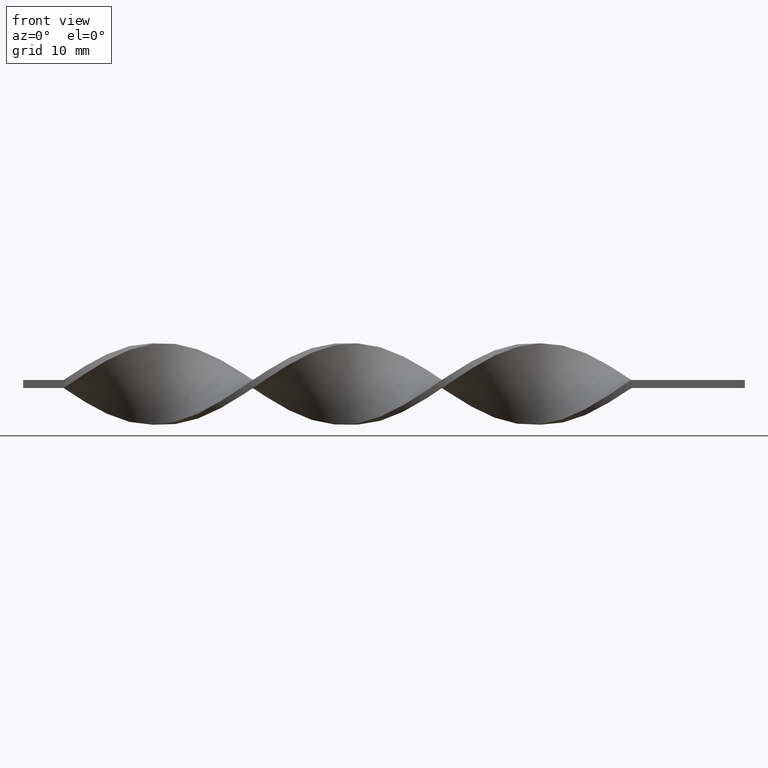
[diagram: clean part render]
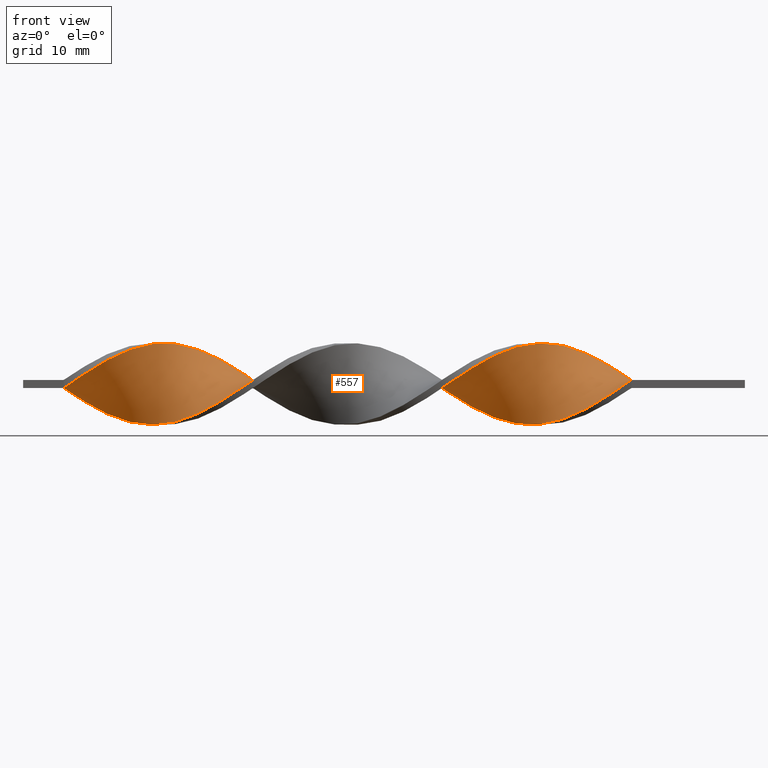
[diagram: same view with one face highlighted and labeled with its STEP entity id]
A machine part, front view. The second image highlights one B-rep face of the part: STEP entity #557.
In plain terms, the highlighted face is a freeform B-spline surface patch.
Its self-contained STEP definition (entity closure, byte-faithful):
#3 = CARTESIAN_POINT ( 'NONE',  ( -23.87179487179487580, -1.694403338218445576, -4.769828676396802081 ) ) ;
#6 = CARTESIAN_POINT ( 'NONE',  ( -71.43589743589744501, 0.1063289642275867114, 5.023812710617931998 ) ) ;
#9 = CARTESIAN_POINT ( 'NONE',  ( -27.46153846153846345, 0.7163302668880149326, -5.010902036907446622 ) ) ;
#11 = CARTESIAN_POINT ( 'NONE',  ( -84.00000000000000000, 4.999999999999995559, -0.5000000000000006661 ) ) ;
#13 = VERTEX_POINT ( 'NONE', #1213 ) ;
#14 = CARTESIAN_POINT ( 'NONE',  ( -69.64102564102564941, 1.305516313869969247, 4.852383656948342505 ) ) ;
#20 = CARTESIAN_POINT ( 'NONE',  ( -84.00000000000000000, 1.666666666666663188, -0.5000000000000002220 ) ) ;
#24 = CARTESIAN_POINT ( 'NONE',  ( -58.87179487179486870, 4.974366919274036292, -0.7111074127247674070 ) ) ;
#31 = CARTESIAN_POINT ( 'NONE',  ( -75.92307692307693401, -2.786661774892330357, 4.225728863414810021 ) ) ;
#41 = CARTESIAN_POINT ( 'NONE',  ( -22.97435897435897090, -2.240532556555387966, -4.497778769905804275 ) ) ;
#56 = CARTESIAN_POINT ( 'NONE',  ( -22.97435897435897445, 1.305516313869969247, 4.852383656948342505 ) ) ;
#59 = CARTESIAN_POINT ( 'NONE',  ( -82.20512820512820440, 4.735051254986476721, -1.682049230150816088 ) ) ;
#69 =( BOUNDED_CURVE ( )  B_SPLINE_CURVE ( 2, ( #1174, #1550, #653, #1293, #1300, #903, #782, #1420, #443, #1528, #56, #1394, #1155, #309, #278, #537, #1163, #1523, #299, #170, #1024, #1399, #189, #1281, #1414, #796, #911, #659, #1535, #1407, #291, #1046, #1286, #788, #427, #916, #1181, #560, #435, #803, #682, #1188, #335, #1438, #1570, #1102, #102, #1317, #1595, #597, #1195, #485, #823, #364, #1079, #114, #1560, #812, #1214, #1069, #587, #227, #207, #973, #1307, #1336, #1089, #123, #1224, #464, #1470, #853, #1346, #237, #1110, #700, #1583, #453, #605 ),
 .UNSPECIFIED., .F., .T. ) 
 B_SPLINE_CURVE_WITH_KNOTS ( ( 3, 2, 2, 2, 2, 2, 2, 2, 2, 2, 2, 2, 2, 2, 2, 2, 2, 2, 2, 2, 2, 2, 2, 2, 2, 2, 2, 2, 2, 2, 2, 2, 2, 2, 2, 2, 2, 2, 2, 3 ),
 ( 0.000000000000000000, 0.01923076923076923184, 0.03846153846153846367, 0.05769230769230768857, 0.07692307692307692735, 0.09615384615384615918, 0.1153846153846153771, 0.1346153846153846090, 0.1538461538461538547, 0.1730769230769230449, 0.1923076923076923184, 0.2115384615384615363, 0.2307692307692307543, 0.2500000000000000000, 0.2692307692307692180, 0.2884615384615384359, 0.3076923076923077094, 0.3269230769230769273, 0.3461538461538460898, 0.3653846153846153633, 0.3846153846153846367, 0.4038461538461539102, 0.4230769230769230727, 0.4423076923076922906, 0.4615384615384615086, 0.4807692307692307820, 0.5000000000000000000, 0.5192307692307692735, 0.5384615384615384359, 0.5576923076923077094, 0.5769230769230768718, 0.5961538461538461453, 0.6153846153846154188, 0.6346153846153845812, 0.6538461538461538547, 0.6730769230769230171, 0.6923076923076921796, 0.7115384615384615641, 0.7307692307692307265, 0.7500000000000000000 ),
 .UNSPECIFIED. ) 
 CURVE ( )  GEOMETRIC_REPRESENTATION_ITEM ( )  RATIONAL_B_SPLINE_CURVE ( ( 1.000000000000000000, 0.9927088740980539727, 1.000000000000000000, 0.9927088740980539727, 1.000000000000000000, 0.9927088740980539727, 1.000000000000000000, 0.9927088740980539727, 1.000000000000000000, 0.9927088740980539727, 1.000000000000000000, 0.9927088740980539727, 1.000000000000000000, 0.9927088740980539727, 1.000000000000000000, 0.9927088740980539727, 1.000000000000000000, 0.9927088740980539727, 1.000000000000000000, 0.9927088740980539727, 1.000000000000000000, 0.9927088740980539727, 1.000000000000000000, 0.9927088740980539727, 1.000000000000000000, 0.9927088740980539727, 1.000000000000000000, 0.9927088740980539727, 1.000000000000000000, 0.9927088740980539727, 1.000000000000000000, 0.9927088740980539727, 1.000000000000000000, 0.9927088740980539727, 1.000000000000000000, 0.9927088740980539727, 1.000000000000000000, 0.9927088740980539727, 1.000000000000000000, 0.9927088740980539727, 1.000000000000000000, 0.9927088740980539727, 1.000000000000000000, 0.9927088740980539727, 1.000000000000000000, 0.9927088740980539727, 1.000000000000000000, 0.9927088740980539727, 1.000000000000000000, 0.9927088740980539727, 1.000000000000000000, 0.9927088740980539727, 1.000000000000000000, 0.9927088740980539727, 1.000000000000000000, 0.9927088740980539727, 1.000000000000000000, 0.9927088740980539727, 1.000000000000000000, 0.9927088740980539727, 1.000000000000000000, 0.9927088740980539727, 1.000000000000000000, 0.9927088740980539727, 1.000000000000000000, 0.9927088740980539727, 1.000000000000000000, 0.9927088740980539727, 1.000000000000000000, 0.9927088740980539727, 1.000000000000000000, 0.9927088740980539727, 1.000000000000000000, 0.9927088740980539727, 1.000000000000000000, 0.9927088740980539727, 1.000000000000000000, 0.9927088740980539727, 1.000000000000000000 ) ) 
 REPRESENTATION_ITEM ( '' )  );
#79 = EDGE_LOOP ( 'NONE', ( #223, #132, #1331, #157 ) ) ;
#83 = CARTESIAN_POINT ( 'NONE',  ( -59.76923076923077360, -4.939289008388870528, 1.107109916111305159 ) ) ;
#96 = CARTESIAN_POINT ( 'NONE',  ( -18.48717948717948900, 3.859023582904236083, 3.275699201900568180 ) ) ;
#102 = CARTESIAN_POINT ( 'NONE',  ( -55.28205128205128460, 4.074115069975898784, -2.941357917118427423 ) ) ;
#105 = CARTESIAN_POINT ( 'NONE',  ( -70.53846153846153300, -1.694403338218445576, -4.769828676396802081 ) ) ;
#111 = CARTESIAN_POINT ( 'NONE',  ( -13.99999999999999645, -5.000000000000000888, 0.5000000000000000000 ) ) ;
#114 = CARTESIAN_POINT ( 'NONE',  ( -63.35897435897436480, 4.530813501584090908, 2.256988544190327239 ) ) ;
#116 = CARTESIAN_POINT ( 'NONE',  ( -81.30769230769233502, 4.530813501584088243, -2.256988544190327239 ) ) ;
#120 = CARTESIAN_POINT ( 'NONE',  ( -48.10256410256410220, 1.099037838325642280, 4.903276030362606619 ) ) ;
#123 = CARTESIAN_POINT ( 'NONE',  ( -74.12820512820510999, -1.694403338218445132, 4.769828676396803857 ) ) ;
#125 = CARTESIAN_POINT ( 'NONE',  ( -76.82051282051281760, 2.428831800708946886, -4.398951702833858945 ) ) ;
#129 = CARTESIAN_POINT ( 'NONE',  ( -40.92307692307691980, 4.659641714287929837, 1.880887847392236800 ) ) ;
#131 = CARTESIAN_POINT ( 'NONE',  ( -13.99999999999999822, 4.999999999999997335, 0.5000000000000000000 ) ) ;
#132 = ORIENTED_EDGE ( 'NONE', *, *, #672, .T. ) ;
#133 = CARTESIAN_POINT ( 'NONE',  ( -38.23076923076922640, -4.939289008388872304, -1.107109916111302050 ) ) ;
#137 = CARTESIAN_POINT ( 'NONE',  ( -38.23076923076922640, 5.060710991611125920, 0.1071099161113012732 ) ) ;
#140 = CARTESIAN_POINT ( 'NONE',  ( -56.17948717948717530, 4.431260581638917451, -2.446670785446253937 ) ) ;
#141 = CARTESIAN_POINT ( 'NONE',  ( -31.05128205128205465, 2.962961240565973320, -4.104038128678484831 ) ) ;
#145 = CARTESIAN_POINT ( 'NONE',  ( -35.53846153846154010, -4.974366919274040733, 0.7111074127247645205 ) ) ;
#151 = CARTESIAN_POINT ( 'NONE',  ( -72.33333333333332860, -0.5036723384328436470, 5.036723384328413822 ) ) ;
#157 = ORIENTED_EDGE ( 'NONE', *, *, #1511, .F. ) ;
#158 = CARTESIAN_POINT ( 'NONE',  ( -42.71794871794872250, -3.410992411735112029, -3.689868665289525396 ) ) ;
#166 = CARTESIAN_POINT ( 'NONE',  ( -64.25641025641024839, -4.659641714287935166, -1.880887847392236800 ) ) ;
#170 = CARTESIAN_POINT ( 'NONE',  ( -31.05128205128205821, -3.716969558312888111, 3.436045048790599576 ) ) ;
#178 = CARTESIAN_POINT ( 'NONE',  ( -22.07692307692308376, -2.786661774892329912, -4.225728863414808245 ) ) ;
#182 = CARTESIAN_POINT ( 'NONE',  ( -82.20512820512820440, -4.974366919274040733, 0.7111074127247645205 ) ) ;
#183 = CARTESIAN_POINT ( 'NONE',  ( -23.87179487179487580, -1.694403338218445576, -4.769828676396802081 ) ) ;
#189 = CARTESIAN_POINT ( 'NONE',  ( -33.74358974358974450, -4.659641714287936054, 1.880887847392238577 ) ) ;
#207 = CARTESIAN_POINT ( 'NONE',  ( -69.64102564102564941, 1.305516313869969247, 4.852383656948342505 ) ) ;
#208 = CARTESIAN_POINT ( 'NONE',  ( -17.58974358974358765, 4.194918542244162829, 2.766343873045447488 ) ) ;
#219 = CARTESIAN_POINT ( 'NONE',  ( -57.07692307692307310, -4.194918542244165494, 2.766343873045449708 ) ) ;
#223 = ORIENTED_EDGE ( 'NONE', *, *, #964, .F. ) ;
#227 = CARTESIAN_POINT ( 'NONE',  ( -68.74358974358973740, 1.894702360851921119, 4.693865276989235724 ) ) ;
#230 = CARTESIAN_POINT ( 'NONE',  ( -22.07692307692308376, 1.894702360851920897, 4.693865276989235724 ) ) ;
#237 = CARTESIAN_POINT ( 'NONE',  ( -79.51282051282051100, -4.431260581638921892, 2.446670785446253049 ) ) ;
#239 = CARTESIAN_POINT ( 'NONE',  ( -75.92307692307693401, 1.894702360851919565, -4.693865276989233948 ) ) ;
#243 = CARTESIAN_POINT ( 'NONE',  ( -72.33333333333332860, -0.5036723384328442021, -5.036723384328412934 ) ) ;
#248 = CARTESIAN_POINT ( 'NONE',  ( -41.82051282051282470, -3.859023582904240968, -3.275699201900568180 ) ) ;
#251 = CARTESIAN_POINT ( 'NONE',  ( -22.07692307692308020, -2.786661774892330357, -4.225728863414808245 ) ) ;
#255 = CARTESIAN_POINT ( 'NONE',  ( -57.97435897435897090, 4.888022846936944887, -1.315104909338225214 ) ) ;
#258 = CARTESIAN_POINT ( 'NONE',  ( -47.20512820512820440, 1.694403338218440691, 4.769828676396802969 ) ) ;
#261 = CARTESIAN_POINT ( 'NONE',  ( -34.64102564102564230, -4.888022846936950216, 1.315104909338224548 ) ) ;
#265 = CARTESIAN_POINT ( 'NONE',  ( -44.51282051282051100, -2.428831800708954436, -4.398951702833859834 ) ) ;
#272 = CARTESIAN_POINT ( 'NONE',  ( -53.48717948717948900, 3.251815666602603905, -3.830886956102705465 ) ) ;
#278 = CARTESIAN_POINT ( 'NONE',  ( -26.56410256410256210, -1.099037838325643834, 4.903276030362608395 ) ) ;
#280 = CARTESIAN_POINT ( 'NONE',  ( -57.07692307692307310, -4.194918542244165494, 2.766343873045449708 ) ) ;
#291 = CARTESIAN_POINT ( 'NONE',  ( -40.92307692307691980, -4.194918542244167270, -2.766343873045447044 ) ) ;
#293 = CARTESIAN_POINT ( 'NONE',  ( -20.28205128205128460, -3.716969558312888555, -3.436045048790597356 ) ) ;
#299 = CARTESIAN_POINT ( 'NONE',  ( -30.15384615384615685, -3.251815666602609234, 3.830886956102704133 ) ) ;
#302 = CARTESIAN_POINT ( 'NONE',  ( -32.84615384615384670, 3.859023582904233418, -3.275699201900567736 ) ) ;
#309 = CARTESIAN_POINT ( 'NONE',  ( -25.66666666666667140, -0.5036723384328436470, 5.036723384328414710 ) ) ;
#327 = CARTESIAN_POINT ( 'NONE',  ( -74.12820512820510999, 0.7163302668880149326, -5.010902036907446622 ) ) ;
#335 = CARTESIAN_POINT ( 'NONE',  ( -51.69230769230769340, 2.240532556555383081, -4.497778769905806051 ) ) ;
#337 = CARTESIAN_POINT ( 'NONE',  ( -77.71794871794872961, 2.962961240565973320, -4.104038128678483943 ) ) ;
#347 = CARTESIAN_POINT ( 'NONE',  ( -69.64102564102564941, -2.240532556555387966, -4.497778769905804275 ) ) ;
#357 = CARTESIAN_POINT ( 'NONE',  ( -84.00000000000000000, 4.999999999999995559, -0.5000000000000006661 ) ) ;
#364 = CARTESIAN_POINT ( 'NONE',  ( -61.56410256410256920, 4.939289008388866975, 1.107109916111302939 ) ) ;
#367 = CARTESIAN_POINT ( 'NONE',  ( -55.28205128205128460, -3.410992411735107144, 3.689868665289526728 ) ) ;
#372 = CARTESIAN_POINT ( 'NONE',  ( -69.64102564102564941, -2.240532556555387966, -4.497778769905804275 ) ) ;
#373 = DIRECTION ( 'NONE',  ( 1.734723475976807341E-16, -1.000000000000000000, 0.000000000000000000 ) ) ;
#376 = CARTESIAN_POINT ( 'NONE',  ( -64.25641025641024839, -4.659641714287935166, -1.880887847392236800 ) ) ;
#380 = CARTESIAN_POINT ( 'NONE',  ( -52.58974358974359120, -1.894702360851922451, 4.693865276989233948 ) ) ;
#383 = CARTESIAN_POINT ( 'NONE',  ( -23.87179487179487936, 0.7163302668880159318, 5.010902036907450174 ) ) ;
#385 = CARTESIAN_POINT ( 'NONE',  ( -53.48717948717948900, -2.428831800708951327, 4.398951702833859834 ) ) ;
#391 = CARTESIAN_POINT ( 'NONE',  ( -76.82051282051281760, -3.251815666602609234, 3.830886956102704133 ) ) ;
#395 = CARTESIAN_POINT ( 'NONE',  ( -61.56410256410256920, 4.939289008388866975, 1.107109916111302939 ) ) ;
#401 = CARTESIAN_POINT ( 'NONE',  ( -27.46153846153846345, -1.694403338218445132, 4.769828676396804745 ) ) ;
#406 = CARTESIAN_POINT ( 'NONE',  ( -67.84615384615385381, 2.428831800708949107, 4.398951702833859834 ) ) ;
#408 = CARTESIAN_POINT ( 'NONE',  ( -45.41025641025640880, 2.786661774892327248, 4.225728863414806469 ) ) ;
#414 = CARTESIAN_POINT ( 'NONE',  ( -22.97435897435897090, -2.240532556555387966, -4.497778769905804275 ) ) ;
#416 = CARTESIAN_POINT ( 'NONE',  ( -35.53846153846153300, 4.735051254986476721, -1.682049230150816088 ) ) ;
#424 = CARTESIAN_POINT ( 'NONE',  ( -83.10256410256410220, 4.939289008388865199, -1.107109916111304937 ) ) ;
#427 = CARTESIAN_POINT ( 'NONE',  ( -44.51282051282051100, -2.428831800708954436, -4.398951702833859834 ) ) ;
#430 = CARTESIAN_POINT ( 'NONE',  ( -24.76923076923076650, -1.099037838325645167, -4.903276030362606619 ) ) ;
#435 = CARTESIAN_POINT ( 'NONE',  ( -48.10256410256410220, -0.1063289642275932062, -5.023812710617931998 ) ) ;
#443 = CARTESIAN_POINT ( 'NONE',  ( -21.17948717948717885, 2.428831800708949107, 4.398951702833859834 ) ) ;
#453 = CARTESIAN_POINT ( 'NONE',  ( -83.10256410256410220, -5.060710991611133025, 0.1071099161113049647 ) ) ;
#455 = CARTESIAN_POINT ( 'NONE',  ( -78.61538461538461320, 3.410992411735102703, -3.689868665289526284 ) ) ;
#464 = CARTESIAN_POINT ( 'NONE',  ( -75.92307692307691980, -2.786661774892330801, 4.225728863414810021 ) ) ;
#466 = CARTESIAN_POINT ( 'NONE',  ( -37.33333333333332860, 4.999999999999995559, -0.5000000000000006661 ) ) ;
#471 = VERTEX_POINT ( 'NONE', #1430 ) ;
#478 = CARTESIAN_POINT ( 'NONE',  ( -73.23076923076924061, 0.1063289642275847546, -5.023812710617930222 ) ) ;
#485 = CARTESIAN_POINT ( 'NONE',  ( -59.76923076923076650, 5.060710991611127696, -0.1071099161113055059 ) ) ;
#487 = CARTESIAN_POINT ( 'NONE',  ( -67.84615384615385381, -3.251815666602609234, -3.830886956102702356 ) ) ;
#492 = CARTESIAN_POINT ( 'NONE',  ( -66.94871794871795601, -3.716969558312888555, -3.436045048790597356 ) ) ;
#494 = CARTESIAN_POINT ( 'NONE',  ( -14.00000000000000000, 4.999999999999997335, 0.5000000000000000000 ) ) ;
#498 = CARTESIAN_POINT ( 'NONE',  ( -46.30769230769230660, 2.240532556555383970, 4.497778769905804275 ) ) ;
#502 = CARTESIAN_POINT ( 'NONE',  ( -31.94871794871794535, -4.074115069975905001, 2.941357917118426535 ) ) ;
#505 = CARTESIAN_POINT ( 'NONE',  ( -61.56410256410256920, -5.060710991611131249, -0.1071099161113024806 ) ) ;
#508 = CARTESIAN_POINT ( 'NONE',  ( -73.23076923076924061, -1.099037838325643834, 4.903276030362608395 ) ) ;
#510 = CARTESIAN_POINT ( 'NONE',  ( -31.94871794871794535, 3.410992411735102703, -3.689868665289526284 ) ) ;
#513 = CARTESIAN_POINT ( 'NONE',  ( -39.12820512820512420, -4.735051254986484714, -1.682049230150813202 ) ) ;
#519 = CARTESIAN_POINT ( 'NONE',  ( -84.00000000000000000, -5.000000000000002665, -0.4999999999999993339 ) ) ;
#523 = CARTESIAN_POINT ( 'NONE',  ( -75.02564102564102200, -2.240532556555387078, 4.497778769905806939 ) ) ;
#531 = CARTESIAN_POINT ( 'NONE',  ( -77.71794871794872961, -3.716969558312888111, 3.436045048790599576 ) ) ;
#537 = CARTESIAN_POINT ( 'NONE',  ( -27.46153846153846345, -1.694403338218445132, 4.769828676396803857 ) ) ;
#541 = CARTESIAN_POINT ( 'NONE',  ( -36.43589743589743790, 4.939289008388865199, -1.107109916111304937 ) ) ;
#548 = CARTESIAN_POINT ( 'NONE',  ( -13.99999999999999822, 4.999999999999997335, 0.5000000000000000000 ) ) ;
#552 = CARTESIAN_POINT ( 'NONE',  ( -31.05128205128205821, 2.962961240565973320, -4.104038128678483943 ) ) ;
#553 = CARTESIAN_POINT ( 'NONE',  ( -75.92307692307691980, 1.894702360851919787, -4.693865276989233948 ) ) ;
#557 = ADVANCED_FACE ( 'NONE', ( #1524 ), #1513, .T. ) ;
#560 = CARTESIAN_POINT ( 'NONE',  ( -47.20512820512820440, -0.7163302668880202617, -5.010902036907448398 ) ) ;
#566 = CARTESIAN_POINT ( 'NONE',  ( -84.00000000000000000, -5.000000000000002665, -0.4999999999999993339 ) ) ;
#579 = CARTESIAN_POINT ( 'NONE',  ( -74.12820512820512420, 0.7163302668880148216, -5.010902036907447510 ) ) ;
#580 = CARTESIAN_POINT ( 'NONE',  ( -77.71794871794874382, 2.962961240565973320, -4.104038128678484831 ) ) ;
#587 = CARTESIAN_POINT ( 'NONE',  ( -67.84615384615385381, 2.428831800708949107, 4.398951702833859834 ) ) ;
#590 = CARTESIAN_POINT ( 'NONE',  ( -20.28205128205128460, 2.962961240565976428, 4.104038128678484831 ) ) ;
#597 = CARTESIAN_POINT ( 'NONE',  ( -57.97435897435897090, 4.888022846936944887, -1.315104909338224992 ) ) ;
#598 = CARTESIAN_POINT ( 'NONE',  ( -56.17948717948717530, -3.859023582904238303, 3.275699201900568180 ) ) ;
#605 = CARTESIAN_POINT ( 'NONE',  ( -84.00000000000000000, -5.000000000000002665, -0.4999999999999993339 ) ) ;
#607 = CARTESIAN_POINT ( 'NONE',  ( -82.20512820512820440, 4.735051254986476721, -1.682049230150816088 ) ) ;
#610 = CARTESIAN_POINT ( 'NONE',  ( -39.12820512820512420, 4.974366919274035403, 0.7111074127247607457 ) ) ;
#614 = CARTESIAN_POINT ( 'NONE',  ( -47.20512820512820440, 1.694403338218440691, 4.769828676396802969 ) ) ;
#618 = CARTESIAN_POINT ( 'NONE',  ( -32.84615384615384670, 3.859023582904232974, -3.275699201900567292 ) ) ;
#621 = CARTESIAN_POINT ( 'NONE',  ( -43.61538461538462030, -2.962961240565982202, -4.104038128678483943 ) ) ;
#626 =( BOUNDED_CURVE ( )  B_SPLINE_CURVE ( 2, ( #111, #1469, #742, #733, #1238, #1525, #1358, #907, #991, #251, #41, #3, #1252, #996, #1131, #9, #1159, #725, #1483, #141, #510, #618, #1402, #1364, #416, #541, #1124, #137, #610, #633, #129, #1230, #1001, #1497, #1611, #408, #498, #258, #120, #1109, #899, #1028, #1397, #380, #385, #751, #1116, #1278, #280, #863, #777, #627, #1245, #505, #1605, #1489, #166, #656, #871, #492, #981, #1476, #372, #858, #1352, #243, #792, #327, #1073, #553, #1183, #580, #661, #1431, #1565, #1036, #59, #424, #805 ),
 .UNSPECIFIED., .F., .T. ) 
 B_SPLINE_CURVE_WITH_KNOTS ( ( 3, 2, 2, 2, 2, 2, 2, 2, 2, 2, 2, 2, 2, 2, 2, 2, 2, 2, 2, 2, 2, 2, 2, 2, 2, 2, 2, 2, 2, 2, 2, 2, 2, 2, 2, 2, 2, 2, 2, 3 ),
 ( 0.000000000000000000, 0.01923076923076923184, 0.03846153846153846367, 0.05769230769230768857, 0.07692307692307692735, 0.09615384615384615918, 0.1153846153846153771, 0.1346153846153846090, 0.1538461538461538547, 0.1730769230769230449, 0.1923076923076923184, 0.2115384615384615363, 0.2307692307692307543, 0.2500000000000000000, 0.2692307692307692180, 0.2884615384615384359, 0.3076923076923077094, 0.3269230769230769273, 0.3461538461538460898, 0.3653846153846153633, 0.3846153846153846367, 0.4038461538461539102, 0.4230769230769230727, 0.4423076923076922906, 0.4615384615384615086, 0.4807692307692307820, 0.5000000000000000000, 0.5192307692307692735, 0.5384615384615384359, 0.5576923076923077094, 0.5769230769230768718, 0.5961538461538461453, 0.6153846153846154188, 0.6346153846153845812, 0.6538461538461538547, 0.6730769230769230171, 0.6923076923076921796, 0.7115384615384615641, 0.7307692307692307265, 0.7500000000000000000 ),
 .UNSPECIFIED. ) 
 CURVE ( )  GEOMETRIC_REPRESENTATION_ITEM ( )  RATIONAL_B_SPLINE_CURVE ( ( 1.000000000000000000, 0.9927088740980539727, 1.000000000000000000, 0.9927088740980539727, 1.000000000000000000, 0.9927088740980539727, 1.000000000000000000, 0.9927088740980539727, 1.000000000000000000, 0.9927088740980539727, 1.000000000000000000, 0.9927088740980539727, 1.000000000000000000, 0.9927088740980539727, 1.000000000000000000, 0.9927088740980539727, 1.000000000000000000, 0.9927088740980539727, 1.000000000000000000, 0.9927088740980539727, 1.000000000000000000, 0.9927088740980539727, 1.000000000000000000, 0.9927088740980539727, 1.000000000000000000, 0.9927088740980539727, 1.000000000000000000, 0.9927088740980539727, 1.000000000000000000, 0.9927088740980539727, 1.000000000000000000, 0.9927088740980539727, 1.000000000000000000, 0.9927088740980539727, 1.000000000000000000, 0.9927088740980539727, 1.000000000000000000, 0.9927088740980539727, 1.000000000000000000, 0.9927088740980539727, 1.000000000000000000, 0.9927088740980539727, 1.000000000000000000, 0.9927088740980539727, 1.000000000000000000, 0.9927088740980539727, 1.000000000000000000, 0.9927088740980539727, 1.000000000000000000, 0.9927088740980539727, 1.000000000000000000, 0.9927088740980539727, 1.000000000000000000, 0.9927088740980539727, 1.000000000000000000, 0.9927088740980539727, 1.000000000000000000, 0.9927088740980539727, 1.000000000000000000, 0.9927088740980539727, 1.000000000000000000, 0.9927088740980539727, 1.000000000000000000, 0.9927088740980539727, 1.000000000000000000, 0.9927088740980539727, 1.000000000000000000, 0.9927088740980539727, 1.000000000000000000, 0.9927088740980539727, 1.000000000000000000, 0.9927088740980539727, 1.000000000000000000, 0.9927088740980539727, 1.000000000000000000, 0.9927088740980539727, 1.000000000000000000, 0.9927088740980539727, 1.000000000000000000 ) ) 
 REPRESENTATION_ITEM ( '' )  );
#627 = CARTESIAN_POINT ( 'NONE',  ( -59.76923076923076650, -4.939289008388870528, 1.107109916111305381 ) ) ;
#630 = CARTESIAN_POINT ( 'NONE',  ( -29.25641025641026260, -2.786661774892330357, 4.225728863414810021 ) ) ;
#633 = CARTESIAN_POINT ( 'NONE',  ( -40.02564102564102200, 4.888022846936944887, 1.315104909338220329 ) ) ;
#635 = CARTESIAN_POINT ( 'NONE',  ( -60.66666666666666430, 4.999999999999997335, 0.5000000000000000000 ) ) ;
#641 = CARTESIAN_POINT ( 'NONE',  ( -45.41025641025640880, -1.894702360851929113, -4.693865276989233948 ) ) ;
#648 = CARTESIAN_POINT ( 'NONE',  ( -49.89743589743589069, 1.099037838325636285, -4.903276030362610172 ) ) ;
#653 = CARTESIAN_POINT ( 'NONE',  ( -15.79487179487179560, 4.735051254986478497, 1.682049230150814756 ) ) ;
#656 = CARTESIAN_POINT ( 'NONE',  ( -65.15384615384614619, -4.431260581638921003, -2.446670785446251273 ) ) ;
#659 = CARTESIAN_POINT ( 'NONE',  ( -38.23076923076922640, -4.939289008388872304, -1.107109916111301828 ) ) ;
#661 = CARTESIAN_POINT ( 'NONE',  ( -78.61538461538461320, 3.410992411735102703, -3.689868665289526284 ) ) ;
#669 = CARTESIAN_POINT ( 'NONE',  ( -28.35897435897435770, 1.305516313869967027, -4.852383656948339841 ) ) ;
#672 = EDGE_CURVE ( 'NONE', #1515, #988, #69, .T. ) ;
#677 = CARTESIAN_POINT ( 'NONE',  ( -29.25641025641025905, 1.894702360851919565, -4.693865276989233948 ) ) ;
#682 = CARTESIAN_POINT ( 'NONE',  ( -49.89743589743589069, 1.099037838325636285, -4.903276030362610172 ) ) ;
#695 = CARTESIAN_POINT ( 'NONE',  ( -54.38461538461538680, -2.962961240565975984, 4.104038128678485720 ) ) ;
#700 = CARTESIAN_POINT ( 'NONE',  ( -81.30769230769232081, -4.888022846936950216, 1.315104909338224326 ) ) ;
#702 = CARTESIAN_POINT ( 'NONE',  ( -36.43589743589743790, 4.939289008388865199, -1.107109916111304715 ) ) ;
#710 = CARTESIAN_POINT ( 'NONE',  ( -60.66666666666666430, -5.000000000000000888, 0.5000000000000000000 ) ) ;
#720 = CARTESIAN_POINT ( 'NONE',  ( -49.00000000000000711, 0.5036723384328398723, 5.036723384328412045 ) ) ;
#725 = CARTESIAN_POINT ( 'NONE',  ( -29.25641025641025905, 1.894702360851919787, -4.693865276989233948 ) ) ;
#731 = CARTESIAN_POINT ( 'NONE',  ( -42.71794871794872250, 4.074115069975900560, 2.941357917118423426 ) ) ;
#733 = CARTESIAN_POINT ( 'NONE',  ( -16.69230769230769340, -4.888022846936949328, -1.315104909338222106 ) ) ;
#738 = CARTESIAN_POINT ( 'NONE',  ( -50.79487179487178850, 1.694403338218439137, -4.769828676396805633 ) ) ;
#742 = CARTESIAN_POINT ( 'NONE',  ( -15.79487179487179205, -4.974366919274039844, -0.7111074127247621890 ) ) ;
#745 = CARTESIAN_POINT ( 'NONE',  ( -25.66666666666667140, -0.5036723384328436470, 5.036723384328413822 ) ) ;
#751 = CARTESIAN_POINT ( 'NONE',  ( -54.38461538461538680, -2.962961240565975984, 4.104038128678486608 ) ) ;
#754 = CARTESIAN_POINT ( 'NONE',  ( -78.61538461538461320, -4.074115069975905001, 2.941357917118426535 ) ) ;
#757 = CARTESIAN_POINT ( 'NONE',  ( -84.00000000000000000, -1.666666666666670071, -0.4999999999999997780 ) ) ;
#759 = CARTESIAN_POINT ( 'NONE',  ( -33.74358974358974450, -4.659641714287936054, 1.880887847392238577 ) ) ;
#766 = CARTESIAN_POINT ( 'NONE',  ( -54.38461538461538680, 3.716969558312881450, -3.436045048790601797 ) ) ;
#773 = CARTESIAN_POINT ( 'NONE',  ( -80.41025641025640880, -4.659641714287936054, 1.880887847392238577 ) ) ;
#777 = CARTESIAN_POINT ( 'NONE',  ( -58.87179487179486870, -4.735051254986480274, 1.682049230150818753 ) ) ;
#782 = CARTESIAN_POINT ( 'NONE',  ( -19.38461538461538680, 3.410992411735105811, 3.689868665289526284 ) ) ;
#788 = CARTESIAN_POINT ( 'NONE',  ( -43.61538461538462030, -2.962961240565982646, -4.104038128678484831 ) ) ;
#792 = CARTESIAN_POINT ( 'NONE',  ( -73.23076923076924061, 0.1063289642275847546, -5.023812710617930222 ) ) ;
#796 = CARTESIAN_POINT ( 'NONE',  ( -36.43589743589743790, -5.060710991611133025, 0.1071099161113049647 ) ) ;
#798 = CARTESIAN_POINT ( 'NONE',  ( -33.74358974358974450, 4.194918542244161053, -2.766343873045447488 ) ) ;
#803 = CARTESIAN_POINT ( 'NONE',  ( -49.00000000000000000, 0.5036723384328380959, -5.036723384328414710 ) ) ;
#805 = CARTESIAN_POINT ( 'NONE',  ( -84.00000000000000000, 4.999999999999995559, -0.5000000000000006661 ) ) ;
#812 = CARTESIAN_POINT ( 'NONE',  ( -65.15384615384616041, 3.859023582904235639, 3.275699201900568180 ) ) ;
#823 = CARTESIAN_POINT ( 'NONE',  ( -60.66666666666666430, 4.999999999999997335, 0.5000000000000000000 ) ) ;
#827 = CARTESIAN_POINT ( 'NONE',  ( -16.69230769230770051, 4.530813501584090908, 2.256988544190326795 ) ) ;
#835 = CARTESIAN_POINT ( 'NONE',  ( -40.92307692307691980, 4.659641714287929837, 1.880887847392236800 ) ) ;
#844 = CARTESIAN_POINT ( 'NONE',  ( -58.87179487179486870, -4.735051254986480274, 1.682049230150818753 ) ) ;
#853 = CARTESIAN_POINT ( 'NONE',  ( -77.71794871794874382, -3.716969558312888111, 3.436045048790599576 ) ) ;
#854 = CARTESIAN_POINT ( 'NONE',  ( -75.02564102564102200, 1.305516313869967027, -4.852383656948339841 ) ) ;
#858 = CARTESIAN_POINT ( 'NONE',  ( -70.53846153846153300, -1.694403338218445576, -4.769828676396802081 ) ) ;
#861 = CARTESIAN_POINT ( 'NONE',  ( -68.74358974358973740, -2.786661774892329912, -4.225728863414808245 ) ) ;
#863 = CARTESIAN_POINT ( 'NONE',  ( -57.97435897435897090, -4.530813501584093572, 2.256988544190328572 ) ) ;
#869 = CARTESIAN_POINT ( 'NONE',  ( -37.33333333333333570, -5.000000000000002665, -0.4999999999999993339 ) ) ;
#871 = CARTESIAN_POINT ( 'NONE',  ( -66.05128205128204399, -4.074115069975905001, -2.941357917118423870 ) ) ;
#876 = CARTESIAN_POINT ( 'NONE',  ( -26.56410256410256210, -1.099037838325643834, 4.903276030362608395 ) ) ;
#881 = CARTESIAN_POINT ( 'NONE',  ( -84.00000000000000000, -5.000000000000002665, -0.4999999999999993339 ) ) ;
#884 = CARTESIAN_POINT ( 'NONE',  ( -52.58974358974358410, 2.786661774892322807, -4.225728863414811798 ) ) ;
#891 = CARTESIAN_POINT ( 'NONE',  ( -30.15384615384615685, -3.251815666602609234, 3.830886956102704133 ) ) ;
#897 = CARTESIAN_POINT ( 'NONE',  ( -32.84615384615384670, -4.431260581638922780, 2.446670785446253049 ) ) ;
#899 = CARTESIAN_POINT ( 'NONE',  ( -49.89743589743589069, -0.1063289642275868085, 5.023812710617930222 ) ) ;
#903 = CARTESIAN_POINT ( 'NONE',  ( -18.48717948717948900, 3.859023582904235639, 3.275699201900568180 ) ) ;
#905 = CARTESIAN_POINT ( 'NONE',  ( -25.66666666666666785, -0.5036723384328442021, -5.036723384328412045 ) ) ;
#907 = CARTESIAN_POINT ( 'NONE',  ( -20.28205128205128460, -3.716969558312888555, -3.436045048790597356 ) ) ;
#911 = CARTESIAN_POINT ( 'NONE',  ( -37.33333333333333570, -5.000000000000002665, -0.4999999999999993339 ) ) ;
#913 = CARTESIAN_POINT ( 'NONE',  ( -13.99999999999999822, -5.000000000000000888, 0.5000000000000000000 ) ) ;
#916 = CARTESIAN_POINT ( 'NONE',  ( -45.41025641025640880, -1.894702360851929113, -4.693865276989233948 ) ) ;
#918 = CARTESIAN_POINT ( 'NONE',  ( -31.94871794871794535, 3.410992411735102703, -3.689868665289526284 ) ) ;
#935 = CARTESIAN_POINT ( 'NONE',  ( -14.89743589743589602, -5.060710991611132137, -0.1071099161113024806 ) ) ;
#944 = CARTESIAN_POINT ( 'NONE',  ( -66.94871794871794179, -3.716969558312888555, -3.436045048790597356 ) ) ;
#955 = CARTESIAN_POINT ( 'NONE',  ( -38.23076923076922640, 5.060710991611126808, 0.1071099161113012732 ) ) ;
#964 = EDGE_CURVE ( 'NONE', #1515, #13, #1260, .T. ) ;
#965 = CARTESIAN_POINT ( 'NONE',  ( -83.10256410256410220, 4.939289008388865199, -1.107109916111304715 ) ) ;
#973 = CARTESIAN_POINT ( 'NONE',  ( -70.53846153846153300, 0.7163302668880159318, 5.010902036907449286 ) ) ;
#976 = CARTESIAN_POINT ( 'NONE',  ( -45.41025641025640880, 2.786661774892326804, 4.225728863414806469 ) ) ;
#981 = CARTESIAN_POINT ( 'NONE',  ( -67.84615384615385381, -3.251815666602609234, -3.830886956102702356 ) ) ;
#985 = CARTESIAN_POINT ( 'NONE',  ( -15.79487179487179560, 4.735051254986478497, 1.682049230150814756 ) ) ;
#988 = VERTEX_POINT ( 'NONE', #881 ) ;
#991 = CARTESIAN_POINT ( 'NONE',  ( -21.17948717948717885, -3.251815666602609234, -3.830886956102702356 ) ) ;
#994 = CARTESIAN_POINT ( 'NONE',  ( -57.07692307692307310, 4.659641714287929837, -1.880887847392241463 ) ) ;
#996 = CARTESIAN_POINT ( 'NONE',  ( -25.66666666666666785, -0.5036723384328442021, -5.036723384328412934 ) ) ;
#998 = CARTESIAN_POINT ( 'NONE',  ( -74.12820512820512420, -1.694403338218445132, 4.769828676396804745 ) ) ;
#1001 = CARTESIAN_POINT ( 'NONE',  ( -42.71794871794872250, 4.074115069975900560, 2.941357917118423426 ) ) ;
#1003 = CARTESIAN_POINT ( 'NONE',  ( -28.35897435897435770, -2.240532556555387078, 4.497778769905806939 ) ) ;
#1012 = CARTESIAN_POINT ( 'NONE',  ( -36.43589743589743790, -5.060710991611133025, 0.1071099161113049508 ) ) ;
#1014 = EDGE_CURVE ( 'NONE', #471, #988, #1563, .T. ) ;
#1019 = CARTESIAN_POINT ( 'NONE',  ( -79.51282051282051100, -4.431260581638922780, 2.446670785446253049 ) ) ;
#1024 = CARTESIAN_POINT ( 'NONE',  ( -31.94871794871794535, -4.074115069975905001, 2.941357917118426535 ) ) ;
#1028 = CARTESIAN_POINT ( 'NONE',  ( -50.79487179487178850, -0.7163302668880178192, 5.010902036907447510 ) ) ;
#1036 = CARTESIAN_POINT ( 'NONE',  ( -81.30769230769232081, 4.530813501584088243, -2.256988544190327683 ) ) ;
#1038 = CARTESIAN_POINT ( 'NONE',  ( -83.10256410256410220, -5.060710991611133025, 0.1071099161113049508 ) ) ;
#1046 = CARTESIAN_POINT ( 'NONE',  ( -41.82051282051282470, -3.859023582904240968, -3.275699201900567736 ) ) ;
#1050 = CARTESIAN_POINT ( 'NONE',  ( -17.58974358974358765, -4.659641714287935166, -1.880887847392236800 ) ) ;
#1069 = CARTESIAN_POINT ( 'NONE',  ( -66.94871794871795601, 2.962961240565976428, 4.104038128678485720 ) ) ;
#1072 = CARTESIAN_POINT ( 'NONE',  ( -48.10256410256410220, 1.099037838325642280, 4.903276030362606619 ) ) ;
#1073 = CARTESIAN_POINT ( 'NONE',  ( -75.02564102564102200, 1.305516313869967027, -4.852383656948339841 ) ) ;
#1079 = CARTESIAN_POINT ( 'NONE',  ( -62.46153846153845990, 4.735051254986478497, 1.682049230150814756 ) ) ;
#1081 = CARTESIAN_POINT ( 'NONE',  ( -21.17948717948717885, 2.428831800708949107, 4.398951702833859834 ) ) ;
#1089 = CARTESIAN_POINT ( 'NONE',  ( -73.23076923076924061, -1.099037838325643834, 4.903276030362608395 ) ) ;
#1094 = CARTESIAN_POINT ( 'NONE',  ( -63.35897435897435770, -4.888022846936949328, -1.315104909338221884 ) ) ;
#1102 = CARTESIAN_POINT ( 'NONE',  ( -54.38461538461538680, 3.716969558312881450, -3.436045048790601797 ) ) ;
#1105 = CARTESIAN_POINT ( 'NONE',  ( -14.89743589743589780, 4.939289008388866975, 1.107109916111302939 ) ) ;
#1109 = CARTESIAN_POINT ( 'NONE',  ( -49.00000000000000000, 0.5036723384328399833, 5.036723384328412934 ) ) ;
#1110 = CARTESIAN_POINT ( 'NONE',  ( -80.41025641025640880, -4.659641714287936054, 1.880887847392238577 ) ) ;
#1111 = CARTESIAN_POINT ( 'NONE',  ( -79.51282051282051100, 3.859023582904233418, -3.275699201900567736 ) ) ;
#1116 = CARTESIAN_POINT ( 'NONE',  ( -55.28205128205128460, -3.410992411735107144, 3.689868665289526728 ) ) ;
#1118 = CARTESIAN_POINT ( 'NONE',  ( -51.69230769230769340, 2.240532556555383081, -4.497778769905806051 ) ) ;
#1124 = CARTESIAN_POINT ( 'NONE',  ( -37.33333333333332860, 4.999999999999995559, -0.5000000000000006661 ) ) ;
#1128 = CARTESIAN_POINT ( 'NONE',  ( -65.15384615384616041, 3.859023582904236083, 3.275699201900568180 ) ) ;
#1131 = CARTESIAN_POINT ( 'NONE',  ( -26.56410256410256210, 0.1063289642275847546, -5.023812710617930222 ) ) ;
#1133 = CARTESIAN_POINT ( 'NONE',  ( -64.25641025641024839, 4.194918542244162829, 2.766343873045447488 ) ) ;
#1141 = CARTESIAN_POINT ( 'NONE',  ( -48.10256410256410220, -0.1063289642275932062, -5.023812710617931998 ) ) ;
#1149 = CARTESIAN_POINT ( 'NONE',  ( -68.74358974358973740, 1.894702360851920897, 4.693865276989235724 ) ) ;
#1155 = CARTESIAN_POINT ( 'NONE',  ( -24.76923076923077005, 0.1063289642275867114, 5.023812710617931998 ) ) ;
#1157 = CARTESIAN_POINT ( 'NONE',  ( -21.17948717948717885, -3.251815666602609234, -3.830886956102702356 ) ) ;
#1159 = CARTESIAN_POINT ( 'NONE',  ( -28.35897435897435770, 1.305516313869967027, -4.852383656948339841 ) ) ;
#1163 = CARTESIAN_POINT ( 'NONE',  ( -28.35897435897435770, -2.240532556555387078, 4.497778769905806939 ) ) ;
#1167 = CARTESIAN_POINT ( 'NONE',  ( -27.46153846153846345, 0.7163302668880148216, -5.010902036907447510 ) ) ;
#1174 = CARTESIAN_POINT ( 'NONE',  ( -13.99999999999999822, 4.999999999999997335, 0.5000000000000000000 ) ) ;
#1176 = CARTESIAN_POINT ( 'NONE',  ( -30.15384615384615330, 2.428831800708946886, -4.398951702833858945 ) ) ;
#1181 = CARTESIAN_POINT ( 'NONE',  ( -46.30769230769230660, -1.305516313869974576, -4.852383656948342505 ) ) ;
#1182 = CARTESIAN_POINT ( 'NONE',  ( -35.53846153846153300, 4.735051254986476721, -1.682049230150816088 ) ) ;
#1183 = CARTESIAN_POINT ( 'NONE',  ( -76.82051282051281760, 2.428831800708946886, -4.398951702833858945 ) ) ;
#1188 = CARTESIAN_POINT ( 'NONE',  ( -50.79487179487178850, 1.694403338218438915, -4.769828676396804745 ) ) ;
#1190 = CARTESIAN_POINT ( 'NONE',  ( -15.79487179487179205, -4.974366919274039844, -0.7111074127247621890 ) ) ;
#1195 = CARTESIAN_POINT ( 'NONE',  ( -58.87179487179486870, 4.974366919274036292, -0.7111074127247674070 ) ) ;
#1198 = CARTESIAN_POINT ( 'NONE',  ( -40.02564102564102200, 4.888022846936944887, 1.315104909338220329 ) ) ;
#1208 = CARTESIAN_POINT ( 'NONE',  ( -44.51282051282051100, 3.251815666602604349, 3.830886956102702356 ) ) ;
#1213 = CARTESIAN_POINT ( 'NONE',  ( -13.99999999999999645, -5.000000000000000888, 0.5000000000000000000 ) ) ;
#1214 = CARTESIAN_POINT ( 'NONE',  ( -66.05128205128204399, 3.410992411735105811, 3.689868665289526284 ) ) ;
#1217 = CARTESIAN_POINT ( 'NONE',  ( -65.15384615384614619, -4.431260581638921892, -2.446670785446251273 ) ) ;
#1224 = CARTESIAN_POINT ( 'NONE',  ( -75.02564102564102200, -2.240532556555387078, 4.497778769905806939 ) ) ;
#1227 = CARTESIAN_POINT ( 'NONE',  ( -49.89743589743589069, -0.1063289642275868085, 5.023812710617930222 ) ) ;
#1230 = CARTESIAN_POINT ( 'NONE',  ( -41.82051282051281760, 4.431260581638916562, 2.446670785446250829 ) ) ;
#1235 = CARTESIAN_POINT ( 'NONE',  ( -66.05128205128204399, -4.074115069975905001, -2.941357917118423870 ) ) ;
#1238 = CARTESIAN_POINT ( 'NONE',  ( -17.58974358974358765, -4.659641714287935166, -1.880887847392236800 ) ) ;
#1242 = CARTESIAN_POINT ( 'NONE',  ( -66.05128205128204399, 3.410992411735105811, 3.689868665289526284 ) ) ;
#1245 = CARTESIAN_POINT ( 'NONE',  ( -60.66666666666666430, -5.000000000000000888, 0.5000000000000000000 ) ) ;
#1248 = CARTESIAN_POINT ( 'NONE',  ( -24.76923076923077005, 0.1063289642275867114, 5.023812710617931998 ) ) ;
#1252 = CARTESIAN_POINT ( 'NONE',  ( -24.76923076923076650, -1.099037838325645167, -4.903276030362606619 ) ) ;
#1254 = CARTESIAN_POINT ( 'NONE',  ( -70.53846153846153300, 0.7163302668880159318, 5.010902036907450174 ) ) ;
#1260 = LINE ( 'NONE', #131, #1271 ) ;
#1262 = CARTESIAN_POINT ( 'NONE',  ( -66.94871794871794179, 2.962961240565976428, 4.104038128678484831 ) ) ;
#1268 = CARTESIAN_POINT ( 'NONE',  ( -59.76923076923077360, 5.060710991611128584, -0.1071099161113055059 ) ) ;
#1271 = VECTOR ( 'NONE', #373, 1000.000000000000000 ) ;
#1276 = CARTESIAN_POINT ( 'NONE',  ( -81.30769230769233502, -4.888022846936950216, 1.315104909338224548 ) ) ;
#1278 = CARTESIAN_POINT ( 'NONE',  ( -56.17948717948717530, -3.859023582904238303, 3.275699201900567736 ) ) ;
#1281 = CARTESIAN_POINT ( 'NONE',  ( -34.64102564102564230, -4.888022846936950216, 1.315104909338224326 ) ) ;
#1286 = CARTESIAN_POINT ( 'NONE',  ( -42.71794871794872250, -3.410992411735112029, -3.689868665289525396 ) ) ;
#1288 = CARTESIAN_POINT ( 'NONE',  ( -16.69230769230769695, -4.888022846936949328, -1.315104909338221884 ) ) ;
#1293 = CARTESIAN_POINT ( 'NONE',  ( -16.69230769230769695, 4.530813501584090908, 2.256988544190327239 ) ) ;
#1296 = CARTESIAN_POINT ( 'NONE',  ( -34.64102564102564230, 4.530813501584088243, -2.256988544190327239 ) ) ;
#1300 = CARTESIAN_POINT ( 'NONE',  ( -17.58974358974358765, 4.194918542244162829, 2.766343873045447488 ) ) ;
#1307 = CARTESIAN_POINT ( 'NONE',  ( -71.43589743589744501, 0.1063289642275867114, 5.023812710617931998 ) ) ;
#1317 = CARTESIAN_POINT ( 'NONE',  ( -56.17948717948717530, 4.431260581638916562, -2.446670785446253937 ) ) ;
#1321 = CARTESIAN_POINT ( 'NONE',  ( -57.97435897435897090, -4.530813501584093572, 2.256988544190328128 ) ) ;
#1328 = CARTESIAN_POINT ( 'NONE',  ( -50.79487179487178850, -0.7163302668880178192, 5.010902036907448398 ) ) ;
#1331 = ORIENTED_EDGE ( 'NONE', *, *, #1014, .F. ) ;
#1336 = CARTESIAN_POINT ( 'NONE',  ( -72.33333333333332860, -0.5036723384328436470, 5.036723384328414710 ) ) ;
#1339 = CARTESIAN_POINT ( 'NONE',  ( -19.38461538461538680, 3.410992411735105811, 3.689868665289526284 ) ) ;
#1346 = CARTESIAN_POINT ( 'NONE',  ( -78.61538461538461320, -4.074115069975905001, 2.941357917118426535 ) ) ;
#1348 = CARTESIAN_POINT ( 'NONE',  ( -62.46153846153845990, -4.974366919274039844, -0.7111074127247621890 ) ) ;
#1352 = CARTESIAN_POINT ( 'NONE',  ( -71.43589743589743080, -1.099037838325645167, -4.903276030362606619 ) ) ;
#1355 = CARTESIAN_POINT ( 'NONE',  ( -46.30769230769230660, 2.240532556555383970, 4.497778769905804275 ) ) ;
#1358 = CARTESIAN_POINT ( 'NONE',  ( -19.38461538461538325, -4.074115069975905001, -2.941357917118423870 ) ) ;
#1361 = CARTESIAN_POINT ( 'NONE',  ( -40.02564102564102200, -4.530813501584097125, -2.256988544190325463 ) ) ;
#1364 = CARTESIAN_POINT ( 'NONE',  ( -34.64102564102564230, 4.530813501584088243, -2.256988544190327683 ) ) ;
#1369 = CARTESIAN_POINT ( 'NONE',  ( -22.97435897435897445, 1.305516313869969247, 4.852383656948342505 ) ) ;
#1378 = CARTESIAN_POINT ( 'NONE',  ( -46.30769230769230660, -1.305516313869974576, -4.852383656948342505 ) ) ;
#1387 = CARTESIAN_POINT ( 'NONE',  ( -47.20512820512820440, -0.7163302668880203727, -5.010902036907449286 ) ) ;
#1394 = CARTESIAN_POINT ( 'NONE',  ( -23.87179487179487936, 0.7163302668880159318, 5.010902036907449286 ) ) ;
#1397 = CARTESIAN_POINT ( 'NONE',  ( -51.69230769230769340, -1.305516313869972134, 4.852383656948340729 ) ) ;
#1399 = CARTESIAN_POINT ( 'NONE',  ( -32.84615384615384670, -4.431260581638921892, 2.446670785446253049 ) ) ;
#1401 = CARTESIAN_POINT ( 'NONE',  ( -26.56410256410256210, 0.1063289642275847546, -5.023812710617930222 ) ) ;
#1402 = CARTESIAN_POINT ( 'NONE',  ( -33.74358974358974450, 4.194918542244161053, -2.766343873045447488 ) ) ;
#1407 = CARTESIAN_POINT ( 'NONE',  ( -40.02564102564102200, -4.530813501584097125, -2.256988544190325463 ) ) ;
#1411 = CARTESIAN_POINT ( 'NONE',  ( -19.38461538461538325, -4.074115069975905001, -2.941357917118423870 ) ) ;
#1414 = CARTESIAN_POINT ( 'NONE',  ( -35.53846153846154010, -4.974366919274040733, 0.7111074127247645205 ) ) ;
#1420 = CARTESIAN_POINT ( 'NONE',  ( -20.28205128205128460, 2.962961240565976428, 4.104038128678485720 ) ) ;
#1430 = CARTESIAN_POINT ( 'NONE',  ( -84.00000000000000000, 4.999999999999995559, -0.5000000000000006661 ) ) ;
#1431 = CARTESIAN_POINT ( 'NONE',  ( -79.51282051282051100, 3.859023582904232974, -3.275699201900567292 ) ) ;
#1438 = CARTESIAN_POINT ( 'NONE',  ( -52.58974358974359120, 2.786661774892322807, -4.225728863414811798 ) ) ;
#1442 = CARTESIAN_POINT ( 'NONE',  ( -80.41025641025640880, 4.194918542244161053, -2.766343873045447488 ) ) ;
#1452 = CARTESIAN_POINT ( 'NONE',  ( -53.48717948717948900, -2.428831800708951327, 4.398951702833859834 ) ) ;
#1462 = CARTESIAN_POINT ( 'NONE',  ( -52.58974358974358410, -1.894702360851922229, 4.693865276989233948 ) ) ;
#1469 = CARTESIAN_POINT ( 'NONE',  ( -14.89743589743589602, -5.060710991611131249, -0.1071099161113024806 ) ) ;
#1470 = CARTESIAN_POINT ( 'NONE',  ( -76.82051282051281760, -3.251815666602609234, 3.830886956102704133 ) ) ;
#1471 = CARTESIAN_POINT ( 'NONE',  ( -72.33333333333332860, -0.5036723384328442021, -5.036723384328412045 ) ) ;
#1476 = CARTESIAN_POINT ( 'NONE',  ( -68.74358974358973740, -2.786661774892330357, -4.225728863414808245 ) ) ;
#1481 = CARTESIAN_POINT ( 'NONE',  ( -43.61538461538461320, 3.716969558312884114, 3.436045048790596024 ) ) ;
#1483 = CARTESIAN_POINT ( 'NONE',  ( -30.15384615384615330, 2.428831800708946886, -4.398951702833858945 ) ) ;
#1486 = CARTESIAN_POINT ( 'NONE',  ( -62.46153846153845990, 4.735051254986478497, 1.682049230150814756 ) ) ;
#1489 = CARTESIAN_POINT ( 'NONE',  ( -63.35897435897436480, -4.888022846936949328, -1.315104909338222106 ) ) ;
#1494 = CARTESIAN_POINT ( 'NONE',  ( -40.92307692307691980, -4.194918542244167270, -2.766343873045447044 ) ) ;
#1497 = CARTESIAN_POINT ( 'NONE',  ( -43.61538461538461320, 3.716969558312884114, 3.436045048790596024 ) ) ;
#1502 = CARTESIAN_POINT ( 'NONE',  ( -31.05128205128206176, -3.716969558312888111, 3.436045048790599576 ) ) ;
#1509 = CARTESIAN_POINT ( 'NONE',  ( -49.00000000000000711, 0.5036723384328382069, -5.036723384328413822 ) ) ;
#1511 = EDGE_CURVE ( 'NONE', #13, #471, #626, .T. ) ;
#1513 =( BOUNDED_SURFACE ( )  B_SPLINE_SURFACE ( 1, 2, ( 
 ( #913, #935, #1190, #1288, #1050, #1537, #1411, #293, #1157, #178, #414, #183, #430, #905, #1401, #1167, #669, #677, #1176, #552, #918, #302, #798, #1296, #1182, #702, #466, #955, #1598, #1198, #835, #1608, #731, #1481, #1208, #976, #1355, #614, #1072, #720, #1227, #1328, #1573, #1462, #1452, #695, #367, #598, #219, #1321, #844, #83, #710, #1564, #1348, #1094, #376, #1217, #1235, #944, #487, #861, #347, #105, #1587, #1471, #478, #579, #854, #239, #125, #337, #455, #1111, #1442, #116, #607, #965, #357 ),
 ( #494, #1105, #985, #827, #208, #96, #1339, #590, #1081, #230, #1369, #383, #1248, #745, #876, #401, #1003, #630, #891, #1502, #502, #897, #759, #261, #145, #1012, #869, #133, #513, #1361, #1494, #248, #158, #621, #265, #641, #1378, #1387, #1141, #1509, #648, #738, #1118, #884, #272, #766, #1616, #140, #994, #255, #24, #1268, #635, #395, #1486, #1516, #1133, #1128, #1242, #1262, #406, #1149, #14, #1254, #6, #151, #508, #998, #523, #31, #391, #531, #754, #1019, #773, #1276, #182, #1038, #566 ) ),
 .UNSPECIFIED., .F., .F., .F. ) 
 B_SPLINE_SURFACE_WITH_KNOTS ( ( 2, 2 ),
 ( 3, 2, 2, 2, 2, 2, 2, 2, 2, 2, 2, 2, 2, 2, 2, 2, 2, 2, 2, 2, 2, 2, 2, 2, 2, 2, 2, 2, 2, 2, 2, 2, 2, 2, 2, 2, 2, 2, 2, 3 ),
 ( 0.000000000000000000, 1.000000000000000000 ),
 ( 0.000000000000000000, 0.01923076923076923184, 0.03846153846153846367, 0.05769230769230769551, 0.07692307692307692735, 0.09615384615384615918, 0.1153846153846153910, 0.1346153846153846090, 0.1538461538461538547, 0.1730769230769230727, 0.1923076923076923184, 0.2115384615384615363, 0.2307692307692307820, 0.2500000000000000000, 0.2692307692307692180, 0.2884615384615384359, 0.3076923076923077094, 0.3269230769230769273, 0.3461538461538461453, 0.3653846153846153633, 0.3846153846153846367, 0.4038461538461538547, 0.4230769230769230727, 0.4423076923076922906, 0.4615384615384615641, 0.4807692307692307820, 0.5000000000000000000, 0.5192307692307692735, 0.5384615384615384359, 0.5576923076923077094, 0.5769230769230768718, 0.5961538461538461453, 0.6153846153846154188, 0.6346153846153845812, 0.6538461538461538547, 0.6730769230769231282, 0.6923076923076922906, 0.7115384615384615641, 0.7307692307692307265, 0.7500000000000000000 ),
 .UNSPECIFIED. ) 
 GEOMETRIC_REPRESENTATION_ITEM ( )  RATIONAL_B_SPLINE_SURFACE ( (
 ( 1.000000000000000000, 0.9927088740980539727, 1.000000000000000000, 0.9927088740980539727, 1.000000000000000000, 0.9927088740980539727, 1.000000000000000000, 0.9927088740980539727, 1.000000000000000000, 0.9927088740980539727, 1.000000000000000000, 0.9927088740980539727, 1.000000000000000000, 0.9927088740980539727, 1.000000000000000000, 0.9927088740980539727, 1.000000000000000000, 0.9927088740980539727, 1.000000000000000000, 0.9927088740980539727, 1.000000000000000000, 0.9927088740980539727, 1.000000000000000000, 0.9927088740980539727, 1.000000000000000000, 0.9927088740980539727, 1.000000000000000000, 0.9927088740980539727, 1.000000000000000000, 0.9927088740980539727, 1.000000000000000000, 0.9927088740980539727, 1.000000000000000000, 0.9927088740980539727, 1.000000000000000000, 0.9927088740980539727, 1.000000000000000000, 0.9927088740980539727, 1.000000000000000000, 0.9927088740980539727, 1.000000000000000000, 0.9927088740980539727, 1.000000000000000000, 0.9927088740980539727, 1.000000000000000000, 0.9927088740980539727, 1.000000000000000000, 0.9927088740980539727, 1.000000000000000000, 0.9927088740980539727, 1.000000000000000000, 0.9927088740980539727, 1.000000000000000000, 0.9927088740980539727, 1.000000000000000000, 0.9927088740980539727, 1.000000000000000000, 0.9927088740980539727, 1.000000000000000000, 0.9927088740980539727, 1.000000000000000000, 0.9927088740980539727, 1.000000000000000000, 0.9927088740980539727, 1.000000000000000000, 0.9927088740980539727, 1.000000000000000000, 0.9927088740980539727, 1.000000000000000000, 0.9927088740980539727, 1.000000000000000000, 0.9927088740980539727, 1.000000000000000000, 0.9927088740980539727, 1.000000000000000000, 0.9927088740980539727, 1.000000000000000000, 0.9927088740980539727, 1.000000000000000000),
 ( 1.000000000000000000, 0.9927088740980539727, 1.000000000000000000, 0.9927088740980539727, 1.000000000000000000, 0.9927088740980539727, 1.000000000000000000, 0.9927088740980539727, 1.000000000000000000, 0.9927088740980539727, 1.000000000000000000, 0.9927088740980539727, 1.000000000000000000, 0.9927088740980539727, 1.000000000000000000, 0.9927088740980539727, 1.000000000000000000, 0.9927088740980539727, 1.000000000000000000, 0.9927088740980539727, 1.000000000000000000, 0.9927088740980539727, 1.000000000000000000, 0.9927088740980539727, 1.000000000000000000, 0.9927088740980539727, 1.000000000000000000, 0.9927088740980539727, 1.000000000000000000, 0.9927088740980539727, 1.000000000000000000, 0.9927088740980539727, 1.000000000000000000, 0.9927088740980539727, 1.000000000000000000, 0.9927088740980539727, 1.000000000000000000, 0.9927088740980539727, 1.000000000000000000, 0.9927088740980539727, 1.000000000000000000, 0.9927088740980539727, 1.000000000000000000, 0.9927088740980539727, 1.000000000000000000, 0.9927088740980539727, 1.000000000000000000, 0.9927088740980539727, 1.000000000000000000, 0.9927088740980539727, 1.000000000000000000, 0.9927088740980539727, 1.000000000000000000, 0.9927088740980539727, 1.000000000000000000, 0.9927088740980539727, 1.000000000000000000, 0.9927088740980539727, 1.000000000000000000, 0.9927088740980539727, 1.000000000000000000, 0.9927088740980539727, 1.000000000000000000, 0.9927088740980539727, 1.000000000000000000, 0.9927088740980539727, 1.000000000000000000, 0.9927088740980539727, 1.000000000000000000, 0.9927088740980539727, 1.000000000000000000, 0.9927088740980539727, 1.000000000000000000, 0.9927088740980539727, 1.000000000000000000, 0.9927088740980539727, 1.000000000000000000, 0.9927088740980539727, 1.000000000000000000) ) ) 
 REPRESENTATION_ITEM ( '' )  SURFACE ( )  );
#1515 = VERTEX_POINT ( 'NONE', #548 ) ;
#1516 = CARTESIAN_POINT ( 'NONE',  ( -63.35897435897435770, 4.530813501584090908, 2.256988544190326795 ) ) ;
#1523 = CARTESIAN_POINT ( 'NONE',  ( -29.25641025641026260, -2.786661774892330801, 4.225728863414810021 ) ) ;
#1524 = FACE_OUTER_BOUND ( 'NONE', #79, .T. ) ;
#1525 = CARTESIAN_POINT ( 'NONE',  ( -18.48717948717948545, -4.431260581638921003, -2.446670785446251273 ) ) ;
#1528 = CARTESIAN_POINT ( 'NONE',  ( -22.07692307692308020, 1.894702360851921119, 4.693865276989235724 ) ) ;
#1535 = CARTESIAN_POINT ( 'NONE',  ( -39.12820512820512420, -4.735051254986484714, -1.682049230150813202 ) ) ;
#1537 = CARTESIAN_POINT ( 'NONE',  ( -18.48717948717948545, -4.431260581638921892, -2.446670785446251273 ) ) ;
#1550 = CARTESIAN_POINT ( 'NONE',  ( -14.89743589743589780, 4.939289008388866975, 1.107109916111302939 ) ) ;
#1560 = CARTESIAN_POINT ( 'NONE',  ( -64.25641025641024839, 4.194918542244162829, 2.766343873045447488 ) ) ;
#1563 = B_SPLINE_CURVE_WITH_KNOTS ( 'NONE', 3,
 ( #11, #20, #757, #519 ),
 .UNSPECIFIED., .F., .F.,
 ( 4, 4 ),
 ( 0.000000000000000000, 1.000000000000000000 ),
 .UNSPECIFIED. ) ;
#1564 = CARTESIAN_POINT ( 'NONE',  ( -61.56410256410256920, -5.060710991611132137, -0.1071099161113024806 ) ) ;
#1565 = CARTESIAN_POINT ( 'NONE',  ( -80.41025641025640880, 4.194918542244161053, -2.766343873045447488 ) ) ;
#1570 = CARTESIAN_POINT ( 'NONE',  ( -53.48717948717948900, 3.251815666602603905, -3.830886956102705465 ) ) ;
#1573 = CARTESIAN_POINT ( 'NONE',  ( -51.69230769230769340, -1.305516313869972134, 4.852383656948340729 ) ) ;
#1583 = CARTESIAN_POINT ( 'NONE',  ( -82.20512820512820440, -4.974366919274040733, 0.7111074127247645205 ) ) ;
#1587 = CARTESIAN_POINT ( 'NONE',  ( -71.43589743589743080, -1.099037838325645167, -4.903276030362606619 ) ) ;
#1595 = CARTESIAN_POINT ( 'NONE',  ( -57.07692307692307310, 4.659641714287929837, -1.880887847392241463 ) ) ;
#1598 = CARTESIAN_POINT ( 'NONE',  ( -39.12820512820512420, 4.974366919274035403, 0.7111074127247607457 ) ) ;
#1605 = CARTESIAN_POINT ( 'NONE',  ( -62.46153846153845990, -4.974366919274039844, -0.7111074127247621890 ) ) ;
#1608 = CARTESIAN_POINT ( 'NONE',  ( -41.82051282051281760, 4.431260581638917451, 2.446670785446250829 ) ) ;
#1611 = CARTESIAN_POINT ( 'NONE',  ( -44.51282051282051100, 3.251815666602604349, 3.830886956102702356 ) ) ;
#1616 = CARTESIAN_POINT ( 'NONE',  ( -55.28205128205128460, 4.074115069975898784, -2.941357917118427423 ) ) ;